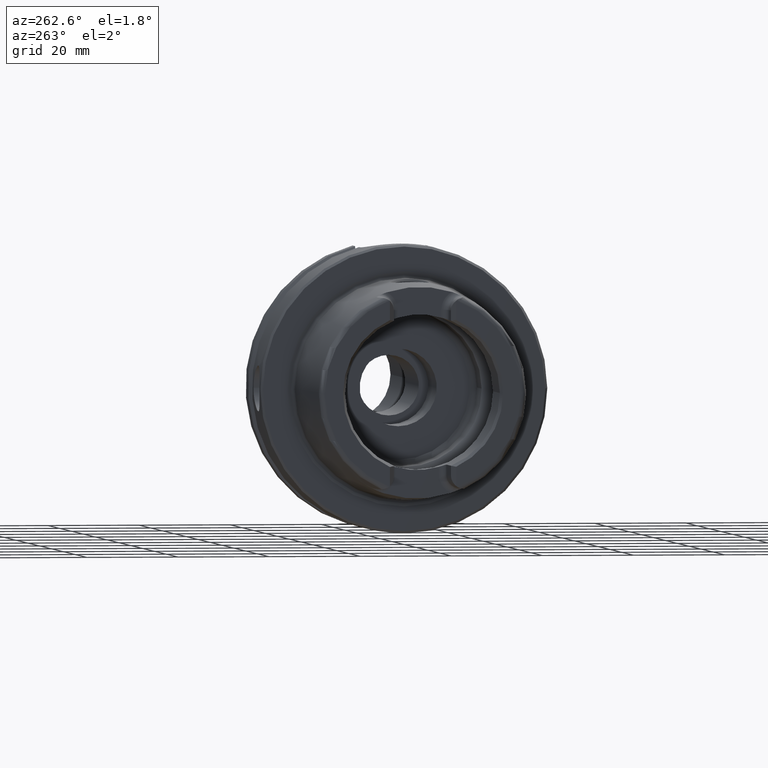
[diagram: clean part render]
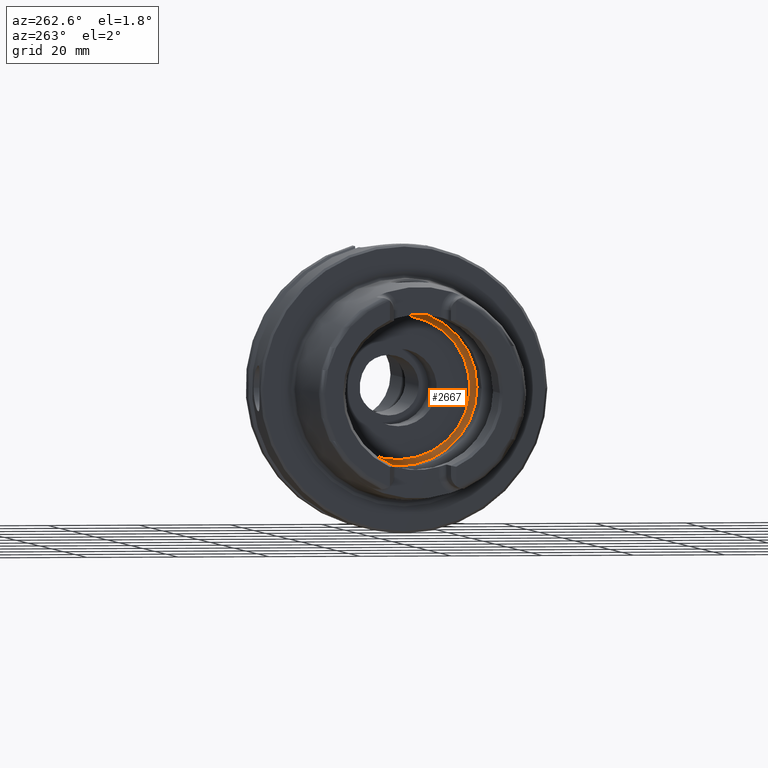
[diagram: same view with one face highlighted and labeled with its STEP entity id]
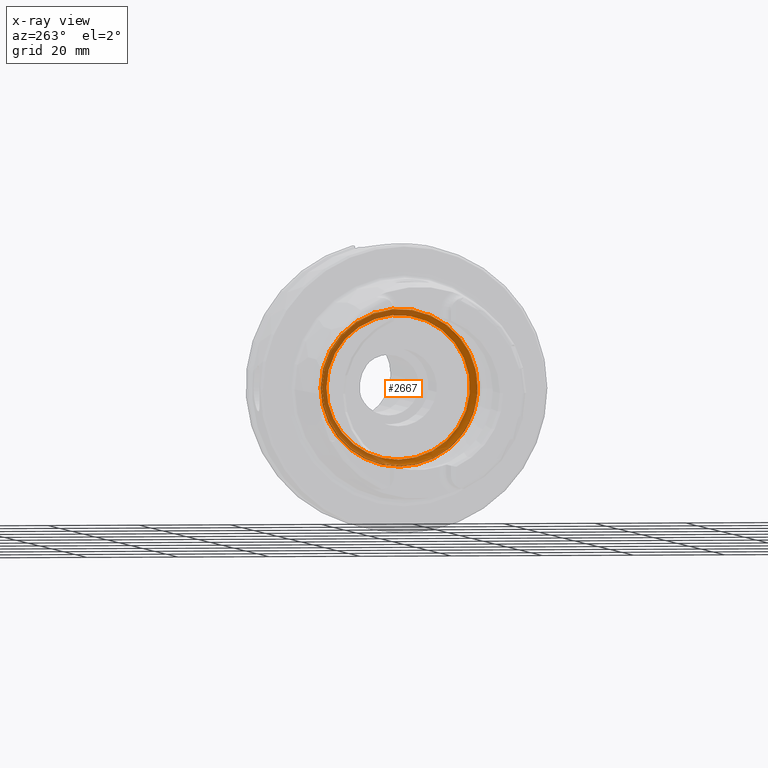
[diagram: x-ray of the same camera — body ghosted, the highlighted face saturated]
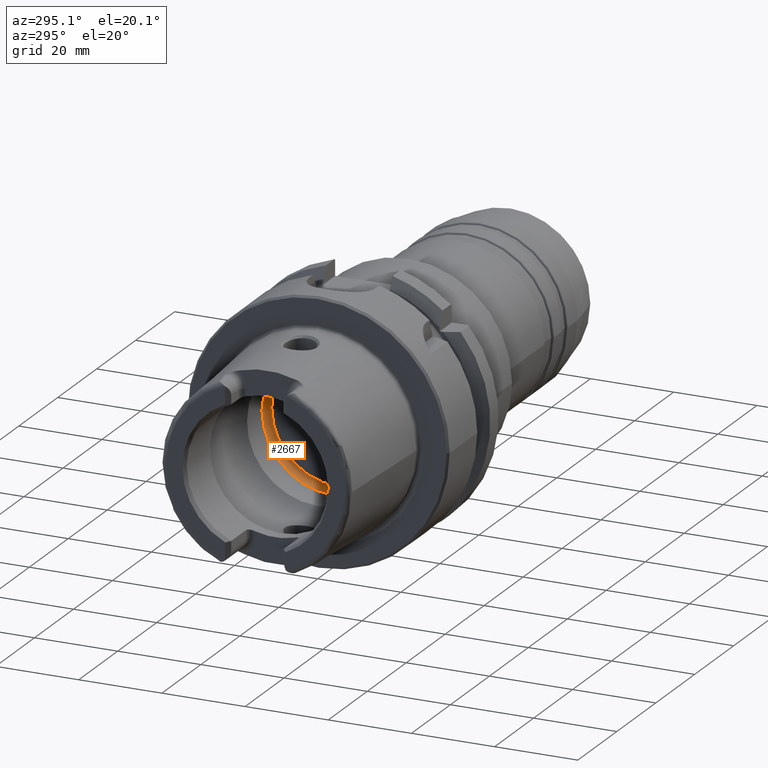
[diagram: same view with one face highlighted and labeled with its STEP entity id]
A machine part, auxiliary view. The second image highlights one B-rep face of the part: STEP entity #2667.
The next image is the same camera in x-ray: the body ghosted, the highlighted face saturated — about 46% of this face is hidden behind the body in this view.
A second angle (auxiliary view) of the same face is appended — the face is thin or edge-on in the first view.
In plain terms, the highlighted toroidal blend (fillet) surface has major radius 15.75 mm and minor (blend) radius 1.5 mm.
Its self-contained STEP definition (entity closure, byte-faithful):
#148=TOROIDAL_SURFACE('',#3037,15.75,1.5);
#330=FACE_OUTER_BOUND('',#475,.T.);
#475=EDGE_LOOP('',(#2449,#2450,#2451,#2452,#2453,#2454,#2455));
#923=CIRCLE('',#3035,15.75);
#924=CIRCLE('',#3036,15.75);
#925=CIRCLE('',#3038,1.5);
#926=CIRCLE('',#3039,17.);
#927=CIRCLE('',#3040,17.);
#928=CIRCLE('',#3041,17.);
#1219=VERTEX_POINT('',#5543);
#1220=VERTEX_POINT('',#5544);
#1221=VERTEX_POINT('',#5548);
#1222=VERTEX_POINT('',#5550);
#1223=VERTEX_POINT('',#5552);
#1634=EDGE_CURVE('',#1219,#1220,#923,.T.);
#1635=EDGE_CURVE('',#1220,#1219,#924,.T.);
#1636=EDGE_CURVE('',#1220,#1221,#925,.T.);
#1637=EDGE_CURVE('',#1221,#1222,#926,.T.);
#1638=EDGE_CURVE('',#1222,#1223,#927,.T.);
#1639=EDGE_CURVE('',#1223,#1221,#928,.T.);
#2449=ORIENTED_EDGE('',*,*,#1634,.F.);
#2450=ORIENTED_EDGE('',*,*,#1635,.F.);
#2451=ORIENTED_EDGE('',*,*,#1636,.T.);
#2452=ORIENTED_EDGE('',*,*,#1637,.T.);
#2453=ORIENTED_EDGE('',*,*,#1638,.T.);
#2454=ORIENTED_EDGE('',*,*,#1639,.T.);
#2455=ORIENTED_EDGE('',*,*,#1636,.F.);
#2667=ADVANCED_FACE('',(#330),#148,.F.);
#3035=AXIS2_PLACEMENT_3D('',#5545,#3855,#3856);
#3036=AXIS2_PLACEMENT_3D('',#5546,#3857,#3858);
#3037=AXIS2_PLACEMENT_3D('',#5547,#3859,#3860);
#3038=AXIS2_PLACEMENT_3D('',#5549,#3861,#3862);
#3039=AXIS2_PLACEMENT_3D('',#5551,#3863,#3864);
#3040=AXIS2_PLACEMENT_3D('',#5553,#3865,#3866);
#3041=AXIS2_PLACEMENT_3D('',#5554,#3867,#3868);
#3855=DIRECTION('center_axis',(-1.,0.,0.));
#3856=DIRECTION('ref_axis',(0.,0.,1.));
#3857=DIRECTION('center_axis',(-1.,0.,0.));
#3858=DIRECTION('ref_axis',(0.,0.,1.));
#3859=DIRECTION('center_axis',(-1.,0.,0.));
#3860=DIRECTION('ref_axis',(0.,0.,1.));
#3861=DIRECTION('center_axis',(0.,1.,-1.22464679914735E-16));
#3862=DIRECTION('ref_axis',(0.,-1.22464679914735E-16,-1.));
#3863=DIRECTION('center_axis',(-1.,0.,0.));
#3864=DIRECTION('ref_axis',(0.,0.,1.));
#3865=DIRECTION('center_axis',(-1.,0.,0.));
#3866=DIRECTION('ref_axis',(0.,0.,1.));
#3867=DIRECTION('center_axis',(-1.,0.,0.));
#3868=DIRECTION('ref_axis',(0.,0.,1.));
#5543=CARTESIAN_POINT('',(10.,15.75,0.));
#5544=CARTESIAN_POINT('',(10.,-1.92881870865708E-15,-15.75));
#5545=CARTESIAN_POINT('Origin',(10.,0.,0.));
#5546=CARTESIAN_POINT('Origin',(10.,0.,0.));
#5547=CARTESIAN_POINT('Origin',(8.5,0.,0.));
#5548=CARTESIAN_POINT('',(7.67084380241115,-2.0818995585505E-15,-17.));
#5549=CARTESIAN_POINT('Origin',(8.5,-1.92881870865708E-15,-15.75));
#5550=CARTESIAN_POINT('',(7.67084380241115,-17.,2.0818995585505E-15));
#5551=CARTESIAN_POINT('Origin',(7.67084380241115,0.,0.));
#5552=CARTESIAN_POINT('',(7.67084380241115,17.,0.));
#5553=CARTESIAN_POINT('Origin',(7.67084380241115,0.,0.));
#5554=CARTESIAN_POINT('Origin',(7.67084380241115,0.,0.));